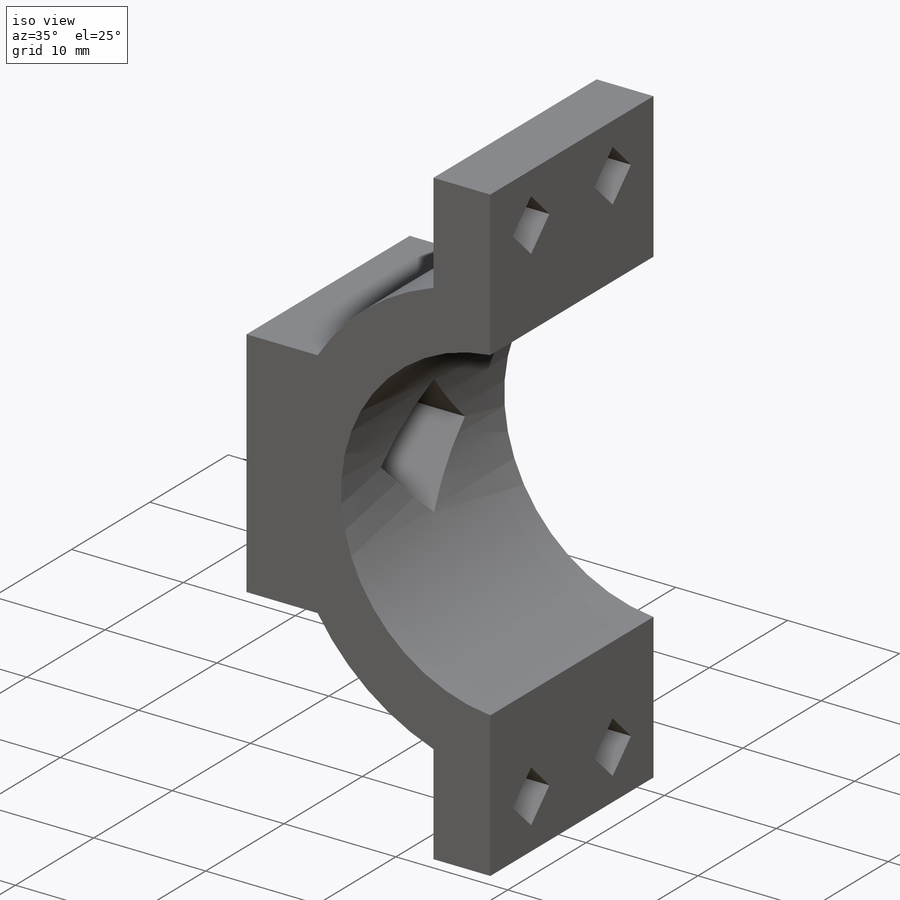
[diagram: iso view]
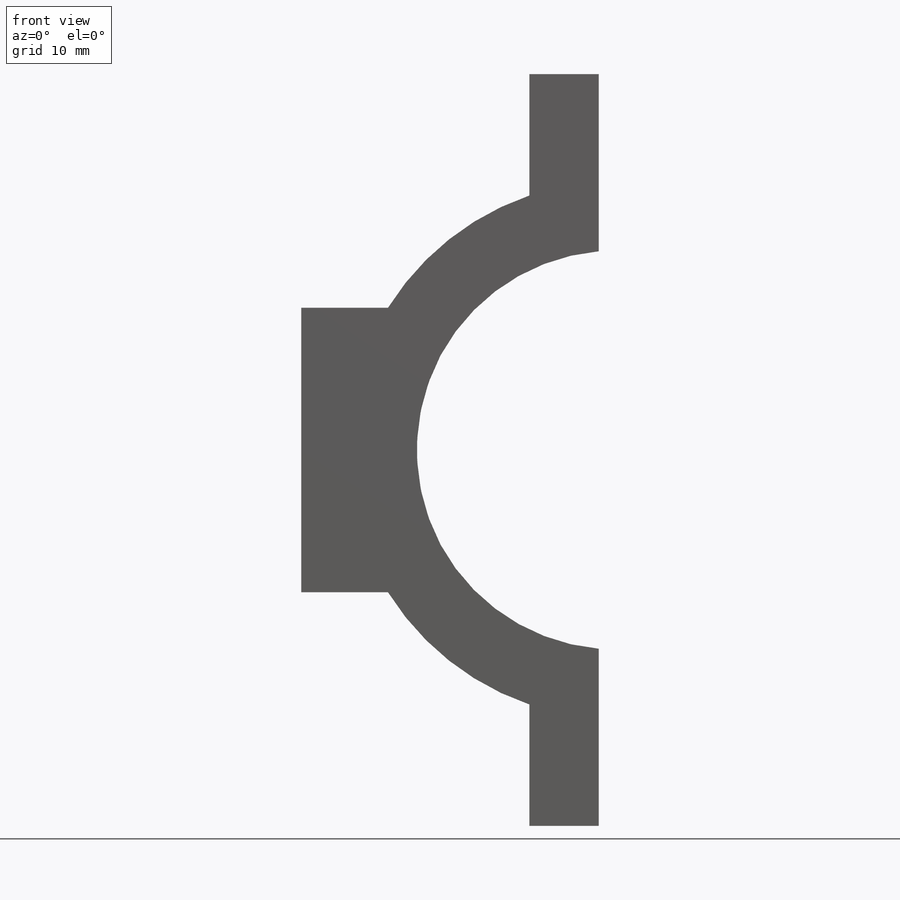
[diagram: front view]
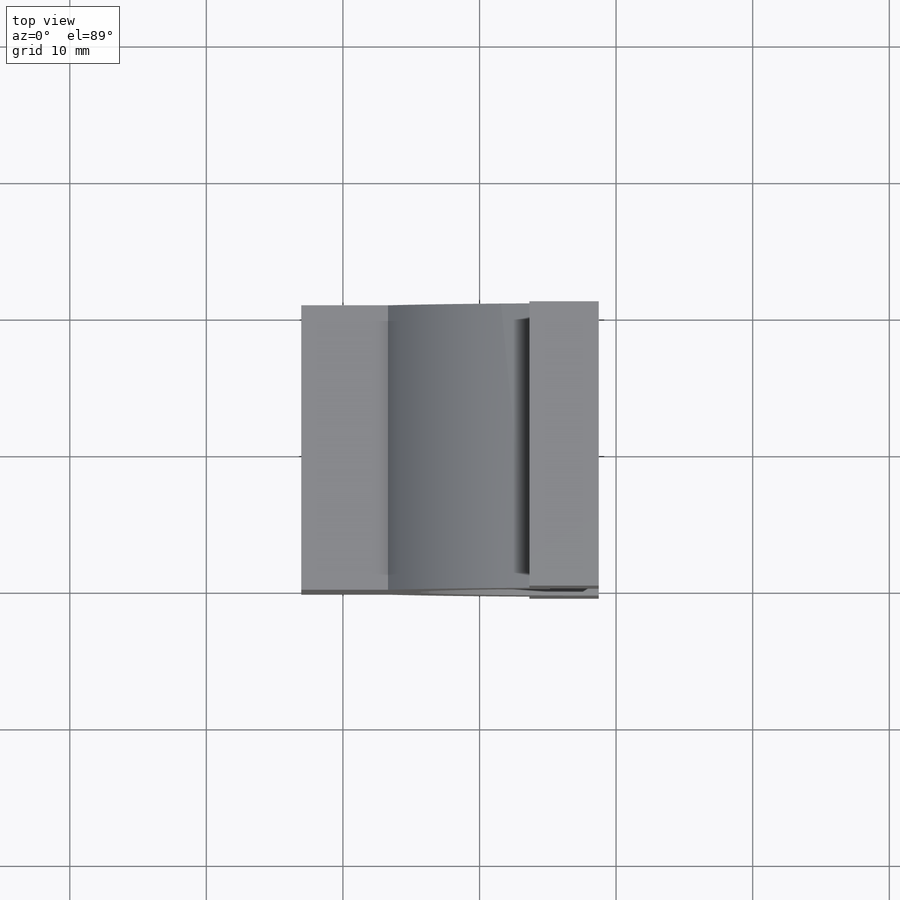
[diagram: top view]
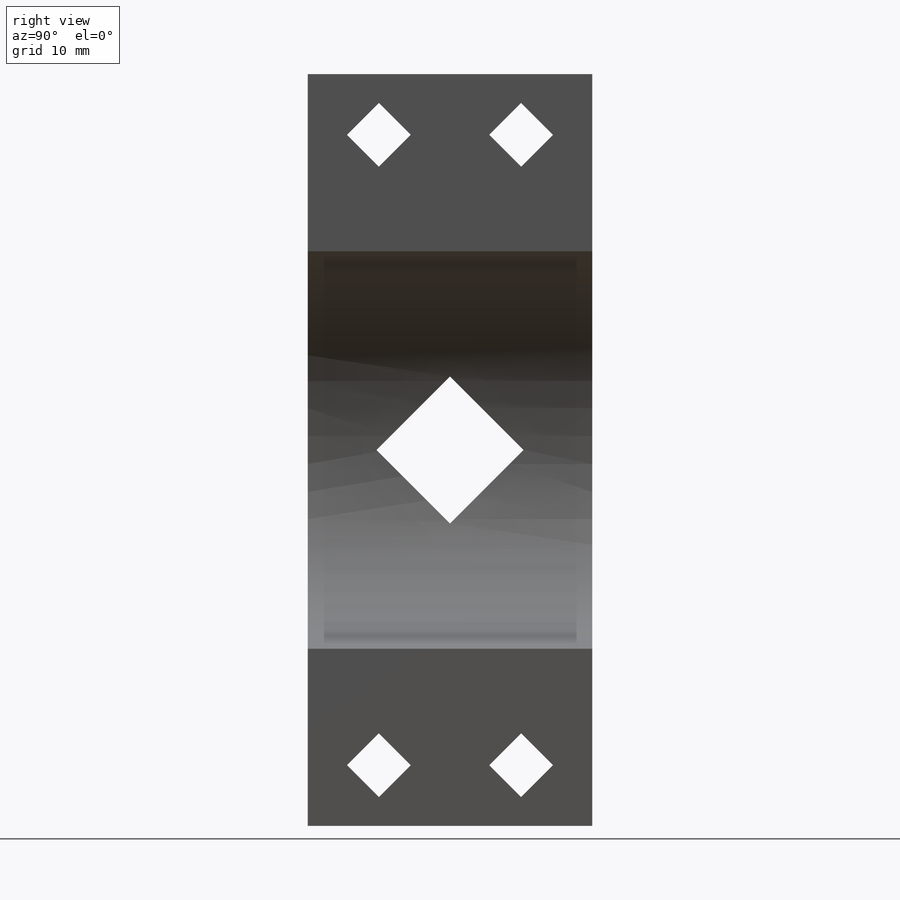
[diagram: right view]
SOLIDWORKS PART (.sldprt)
format: sldprt  version: not decoded by parser v0  size: 295,424 bytes
history: native  units: mm
features: sketch x5, cut_extrude x3, mirror x2, material x1, extrude x1 (+12 scaffold rows collapsed)
feature tree (24):
  scaffold x12  (default folders/planes/origin — collapsed)
  material  "ABS"
  sketch  "Sketch1"  dims[D1=29.21mm D2=5.08mm D3=1.27mm D4=5.08mm D5=8.89mm D6=3.2639mm D7=6.35mm D8=20.828mm D9=~2.545325mm]
  extrude  "Boss-Extrude1"  Depth=20.828mm
  mirror  "Mirror1"
  sketch  "Sketch2"  dims[c1.D1=3.2639mm c1.D2=5.5626mm c1.D3=6.35mm c1.D4=~7.332348mm c2.D1=10.414mm c2.D2=3.302mm]
  cut_extrude  "Cut-Extrude1"  [1 undecoded]
  sketch  "Sketch5"  dims[c1.D1=6.35mm c1.D3=6.35mm c2.D1=6.35mm]
  cut_extrude  "Cut-Extrude3"  Depth=2.38125mm
  mirror  "Mirror2"
  sketch  "Sketch3"  dims[D1=7.62mm]
  cut_extrude  "Cut-Extrude2"  [1 undecoded]
  sketch  "Sketch4"
decode coverage: 6 of 11 modeling features carry decoded parameters
note: ~ marks probable driven/reference dimensions
note: 2 parameter values undecoded
note: suppression state not decoded; provenance and decode notes live in map.json
